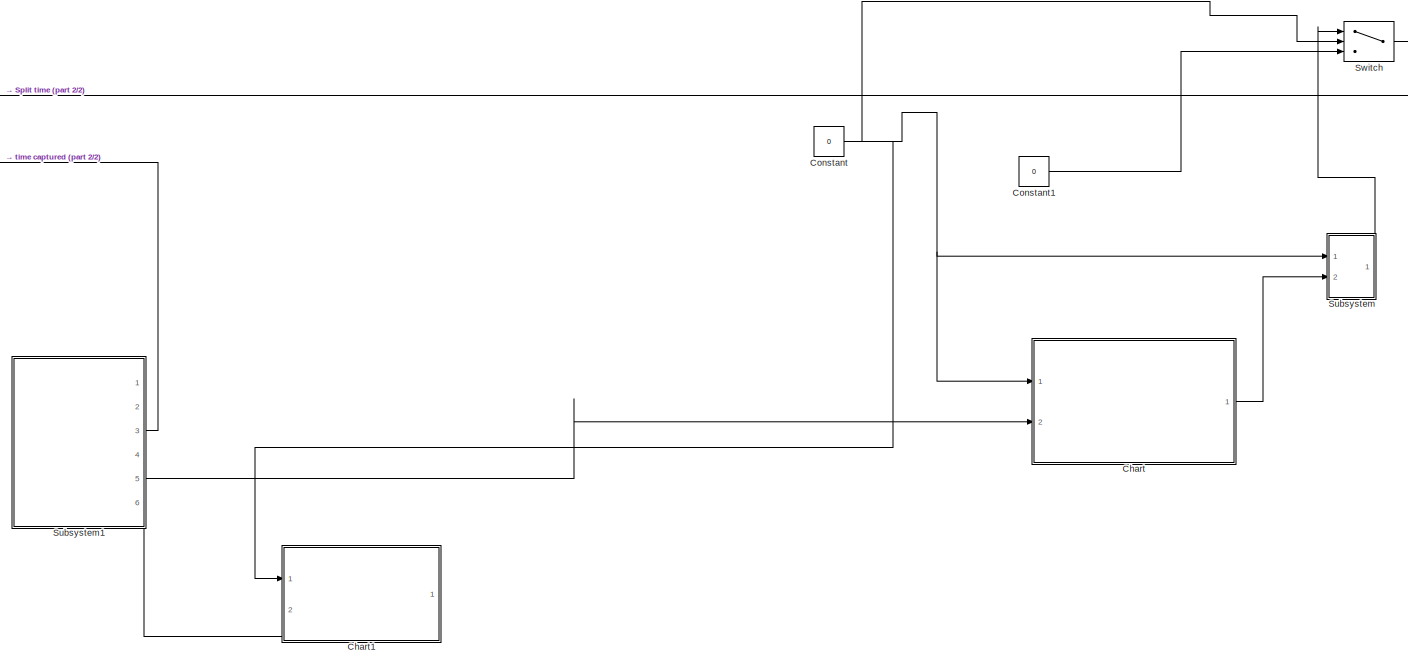
[diagram: root canvas - part 1/2, center side, full height]
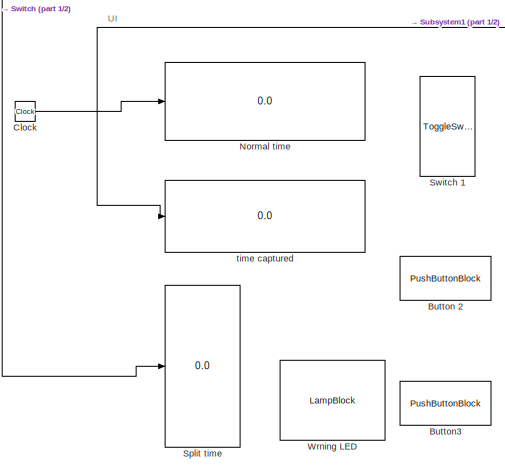
[diagram: root canvas - part 2/2, middle left region]
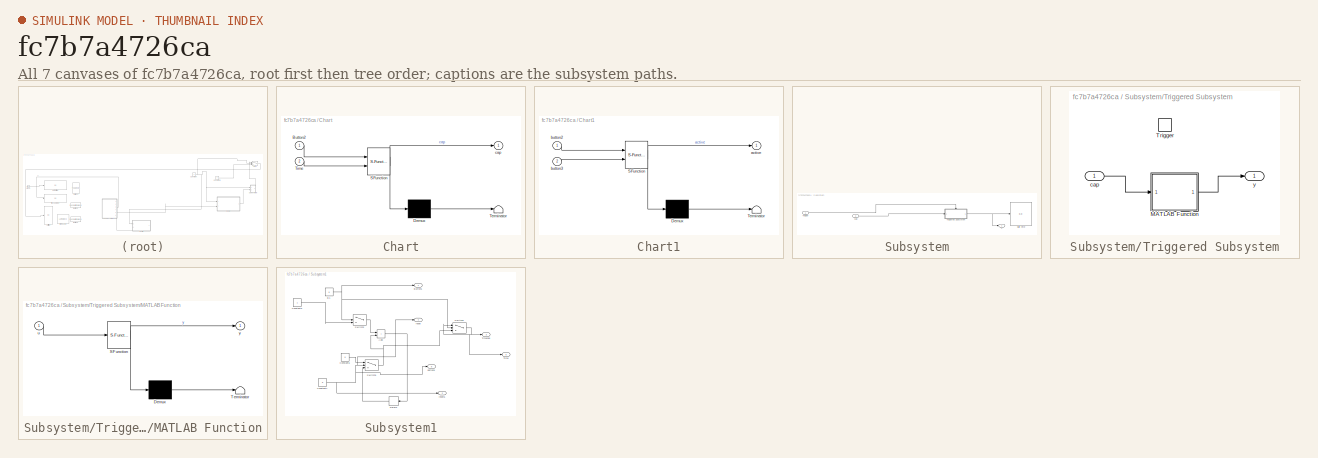
[diagram: thumbnail index - all 7 canvases of the model, root first then tree order]
MODEL slx_fc7b7a4726ca
KIND model
CONFIG AbsTol = auto
CONFIG EnableMultiTasking = off
CONFIG FixedStep = auto
CONFIG MaxStep = auto
CONFIG MinStep = auto
CONFIG RelTol = 1e-3
CONFIG SampleTimeConstraint = Unconstrained
CONFIG SolverName = VariableStepAuto
CONFIG StartTime = 0.0
CONFIG StopTime = 50
BLOCK [PushButtonBlock] Button 2
  ButtonText = Button2
BLOCK [PushButtonBlock] Button3
  ButtonText = Reset
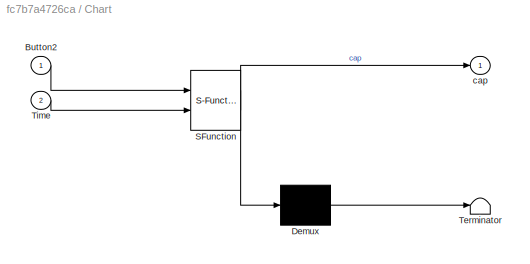
BLOCK [SubSystem] Chart
  ErrorFcn = Stateflow.Translate.translate
  PermitHierarchicalResolution = ExplicitOnly
  Ports = [2, 1]
  RequestExecContextInheritance = off
  SFBlockType = Chart
  TreatAsAtomicUnit = on
BLOCK [Demux] Chart/ Demux 
  Outputs = 1
  Ports = [1, 1]
BLOCK [S-Function] Chart/ SFunction 
  EnableBusSupport = on
  FunctionName = sf_sfun
  PortCounts = [2 2]
  Ports = [2, 2]
  SFcnIsStateOwnerBlock = off
  SFunctionDeploymentMode = off
  Tag = Stateflow S-Function 3
BLOCK [Terminator] Chart/ Terminator 
BLOCK [Inport] Chart/Button2
BLOCK [Inport] Chart/Time
  Port = 2
BLOCK [Outport] Chart/cap
BLOCK [SubSystem] Chart1
  ErrorFcn = Stateflow.Translate.translate
  PermitHierarchicalResolution = ExplicitOnly
  Ports = [2, 1]
  RequestExecContextInheritance = off
  SFBlockType = Chart
  TreatAsAtomicUnit = on
BLOCK [Demux] Chart1/ Demux 
  Outputs = 1
  Ports = [1, 1]
BLOCK [S-Function] Chart1/ SFunction 
  EnableBusSupport = on
  FunctionName = sf_sfun
  PortCounts = [2 2]
  Ports = [2, 2]
  SFcnIsStateOwnerBlock = off
  SFunctionDeploymentMode = off
  Tag = Stateflow S-Function 1
BLOCK [Terminator] Chart1/ Terminator 
BLOCK [Outport] Chart1/active
BLOCK [Inport] Chart1/button2
BLOCK [Inport] Chart1/button3
  Port = 2
BLOCK [Clock] Clock
  Decimation = 2
  DisplayTime = on
BLOCK [Constant] Constant
  Value = 0
BLOCK [Constant] Constant1
  Value = 0
BLOCK [Display] Normal time
  Decimation = 1
  Ports = [1]
BLOCK [Display] Split time
  Decimation = 1
  Ports = [1]
BLOCK [SubSystem] Subsystem
  Ports = [2, 1]
  RequestExecContextInheritance = off
BLOCK [Display] Subsystem/Split time
  AttributesFormatString = %<RuntimeObject>
  Decimation = 1
  Ports = [1]
BLOCK [Inport] Subsystem/Trigger
BLOCK [SubSystem] Subsystem/Triggered Subsystem
  Ports = [1, 1, 0, 1]
  RequestExecContextInheritance = off
  TreatAsAtomicUnit = on
BLOCK [SubSystem] Subsystem/Triggered Subsystem/MATLAB Function
  ErrorFcn = Stateflow.Translate.translate
  PermitHierarchicalResolution = ExplicitOnly
  Ports = [1, 1]
  RequestExecContextInheritance = off
  SFBlockType = MATLAB Function
  TreatAsAtomicUnit = on
BLOCK [Demux] Subsystem/Triggered Subsystem/MATLAB Function/ Demux 
  Outputs = 1
  Ports = [1, 1]
BLOCK [S-Function] Subsystem/Triggered Subsystem/MATLAB Function/ SFunction 
  EnableBusSupport = on
  FunctionName = sf_sfun
  PortCounts = [1 2]
  Ports = [1, 2]
  SFcnIsStateOwnerBlock = off
  SFunctionDeploymentMode = off
  Tag = Stateflow S-Function 2
BLOCK [Terminator] Subsystem/Triggered Subsystem/MATLAB Function/ Terminator 
BLOCK [Inport] Subsystem/Triggered Subsystem/MATLAB Function/u
BLOCK [Outport] Subsystem/Triggered Subsystem/MATLAB Function/y
BLOCK [TriggerPort] Subsystem/Triggered Subsystem/Trigger
  Ports = []
  StatesWhenEnabling = held
  VariantControl = (inherit)
BLOCK [Inport] Subsystem/Triggered Subsystem/cap
BLOCK [Outport] Subsystem/Triggered Subsystem/y
BLOCK [Inport] Subsystem/cap
  Port = 2
BLOCK [Outport] Subsystem/y
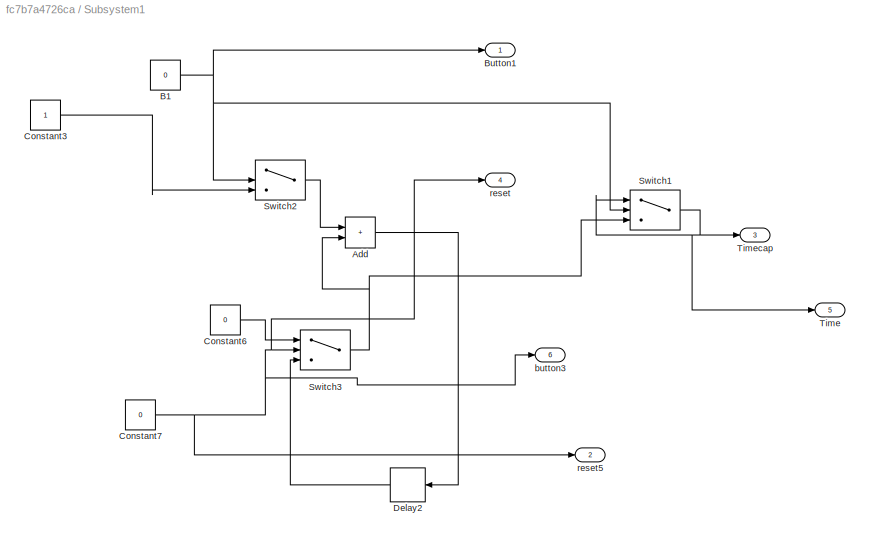
BLOCK [SubSystem] Subsystem1
  PortSchema = {"entries":[{"content":{"sides":[{"content":{"connectorIds":[]},"type":"ConnectorPlacement.EquallySpacedRectSide","uuid":"21e32335-904f-44b9-a1bd-7c32fec6b7e4"},{"content":{"connectorIds":["Out1","Out2","Out3","Out4","Out5"],"side":"RIGHT"},"type":"ConnectorPlacement.EquallySpacedRectSide","uuid":"4bc76ca5-d21a-4374-a6fe-61bf81c89fd5"},{"content":{"connectorIds":[],"side":"TOP"},"type":"ConnectorP...<+413ch>
  Ports = [0, 6]
  RequestExecContextInheritance = off
BLOCK [Sum] Subsystem1/Add
  IconShape = rectangular
  Ports = [2, 1]
BLOCK [Constant] Subsystem1/B1
  Value = 0
  VectorParams1D = off
BLOCK [Outport] Subsystem1/Button1
BLOCK [Constant] Subsystem1/Constant3
BLOCK [Constant] Subsystem1/Constant6
  Value = 0
BLOCK [Constant] Subsystem1/Constant7
  Value = 0
BLOCK [Delay] Subsystem1/Delay2
  DelayLength = 1
  InitialCondition = 0
  InputPortMap = u0
  Ports = [1, 1]
  SampleTime = 1
BLOCK [Switch] Subsystem1/Switch1
  Criteria = u2 > Threshold
  InputSameDT = off
  SaturateOnIntegerOverflow = off
BLOCK [Switch] Subsystem1/Switch2
  Criteria = u2 > Threshold
  InputSameDT = off
  SaturateOnIntegerOverflow = off
BLOCK [Switch] Subsystem1/Switch3
  Criteria = u2 > Threshold
  InputSameDT = off
  SaturateOnIntegerOverflow = off
BLOCK [Outport] Subsystem1/Time
  Port = 5
BLOCK [Outport] Subsystem1/Timecap
  Port = 3
BLOCK [Outport] Subsystem1/button3
  Port = 6
BLOCK [Outport] Subsystem1/reset
  Port = 4
BLOCK [Outport] Subsystem1/reset5
  Port = 2
BLOCK [Switch] Switch
  Criteria = u2 > Threshold
  InputSameDT = off
  SaturateOnIntegerOverflow = off
BLOCK [ToggleSwitchBlock] Switch 1
BLOCK [LampBlock] Wrning LED
BLOCK [Display] time captured 
  Decimation = 1
  Ports = [1]
ANNOTATION (root): UI
LINE Chart:1 -> Subsystem:2
LINE Clock:1 -> Normal time:1
LINE Constant1:1 -> Switch:3
NET Constant:1 -> Chart1:1, Chart:1, Subsystem:1, Switch:2
LINE Subsystem/Trigger:1 -> Subsystem/Triggered Subsystem:trigger
LINE Subsystem/Triggered Subsystem/MATLAB Function:1 -> Subsystem/Triggered Subsystem/y:1
LINE Subsystem/Triggered Subsystem/cap:1 -> Subsystem/Triggered Subsystem/MATLAB Function:1
NET Subsystem/Triggered Subsystem:1 -> Subsystem/Split time:1, Subsystem/y:1
LINE Subsystem/cap:1 -> Subsystem/Triggered Subsystem:1
LINE Subsystem1/Add:1 -> Subsystem1/Delay2:1
NET Subsystem1/B1:1 -> Subsystem1/Button1:1, Subsystem1/Switch1:2, Subsystem1/Switch2:2
LINE Subsystem1/Constant3:1 -> Subsystem1/Switch2:3
LINE Subsystem1/Constant6:1 -> Subsystem1/Switch3:1
NET Subsystem1/Constant7:1 -> Subsystem1/Switch3:2, Subsystem1/button3:1, Subsystem1/reset5:1, Subsystem1/reset:1
LINE Subsystem1/Delay2:1 -> Subsystem1/Switch3:3
NET Subsystem1/Switch1:1 -> Subsystem1/Switch1:1, Subsystem1/Time:1, Subsystem1/Timecap:1
LINE Subsystem1/Switch2:1 -> Subsystem1/Add:1
NET Subsystem1/Switch3:1 -> Subsystem1/Add:2, Subsystem1/Switch1:3
LINE Subsystem1:3 -> time captured :1
LINE Subsystem1:5 -> Chart:2
LINE Subsystem1:6 -> Chart1:2
LINE Subsystem:1 -> Switch:1
LINE Switch:1 -> Split time:1
note: NET lines group one-source signal fan-out (src -> all destinations, sorted); 1:1 wires keep LINE
CHART Chart1 states=6 transitions=12
  STATE_LABEL 'a\nentry:\nactive = 0;'
  STATE_LABEL 'a1\nentry:\nactive = 0'
  STATE_LABEL 'a2\nentry:\nactive = 0'
  STATE_LABEL 'a3\nentry:\nactive = 0'
  STATE_LABEL 'a4\nentry :\nactive = 1;'
  STATE_LABEL 'a5\nentry:\nactive = 0'
CHART Subsystem/Triggered
Subsystem/MATLAB Function states=1 transitions=1
  STATE_LABEL 'eML_blk_kernel()'
  STATE_LABEL 'SCRIPT:\nfunction y  = memory(u)\npersistent slot\nif isempty(slot) \n    slot = zeros(5,1);    \nend\nslot(2:end) = slot(1:end-1);\nslot(1) = u(1);\ny = slot;\nif ~isempty(slot) \n    slot(5) = u(1)\nend\n\n'
CHART Chart states=2 transitions=3
  STATE_LABEL 'Counter\nentry:\nTime\n'
  STATE_LABEL 'Capture1\nentry:\ncap = Time;\n'
CHART  states=0 transitions=0
CHART  states=0 transitions=0
CHART  states=0 transitions=0
